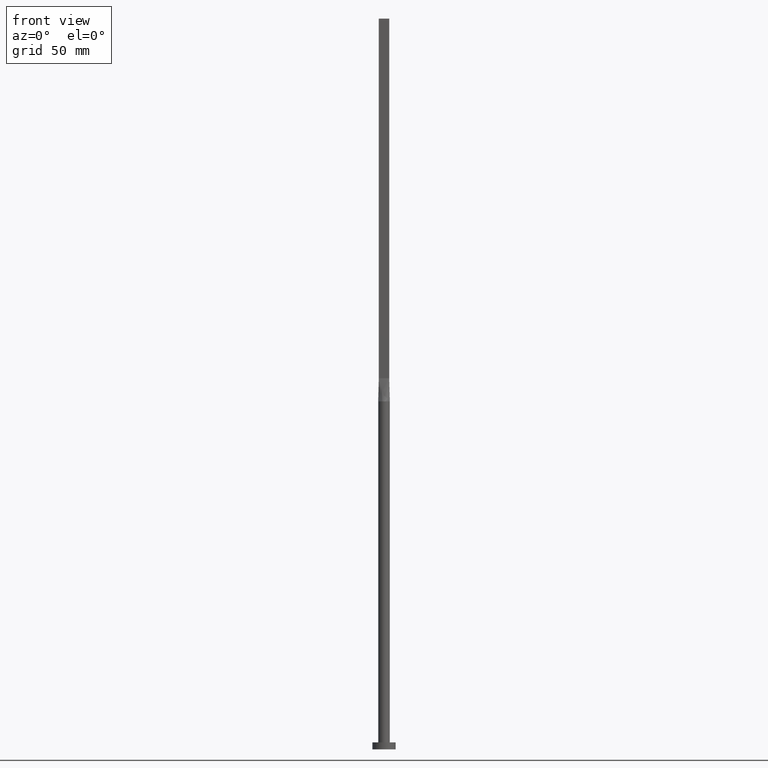
[diagram: clean part render]
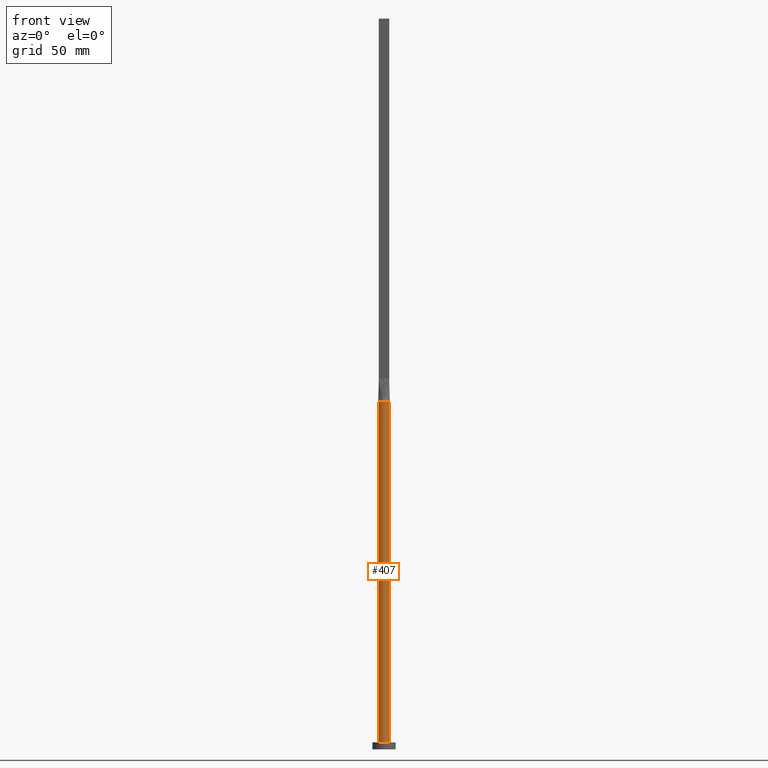
[diagram: same view with one face highlighted and labeled with its STEP entity id]
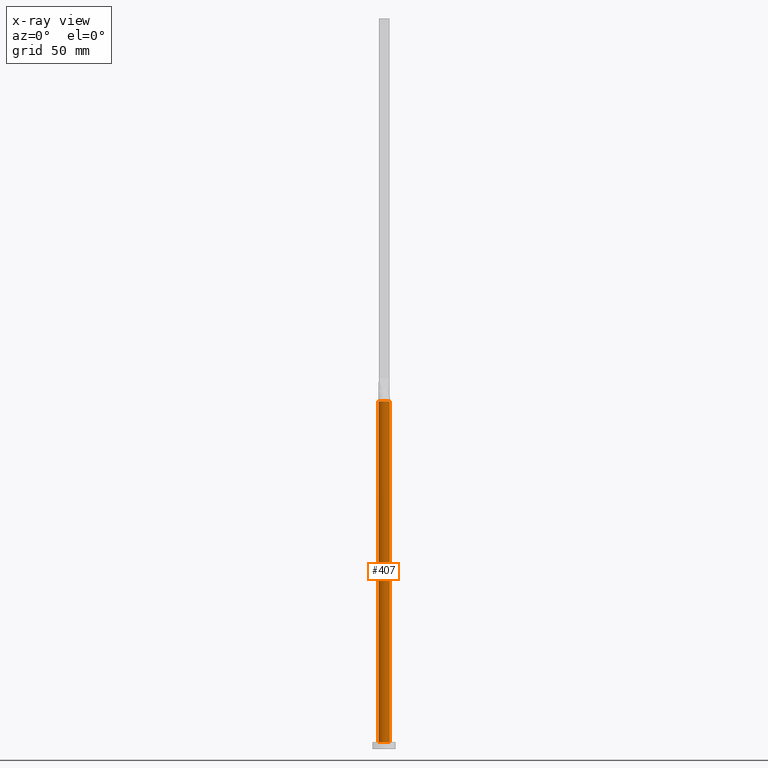
[diagram: x-ray of the same camera — body ghosted, the highlighted face saturated]
A machine part, front view. The second image highlights one B-rep face of the part: STEP entity #407.
The next image is the same camera in x-ray: the body ghosted, the highlighted face saturated — about 0% of this face is hidden behind the body in this view.
In plain terms, the highlighted cylindrical surface (edge-blend (fillet) strip) has radius 2.5 mm, axis along (-0, -0, -1).
Its self-contained STEP definition (entity closure, byte-faithful):
#11 = EDGE_CURVE ( 'NONE', #104, #449, #413, .T. ) ;
#23 = CARTESIAN_POINT ( 'NONE',  ( 0.000000000000000000, 0.000000000000000000, 150.0000000000000000 ) ) ;
#24 = CARTESIAN_POINT ( 'NONE',  ( -2.440688158044365785, -0.5423755258804862089, 150.0000000000000000 ) ) ;
#25 = CIRCLE ( 'NONE', #374, 2.500000000000000000 ) ;
#42 = AXIS2_PLACEMENT_3D ( 'NONE', #573, #391, #352 ) ;
#64 = DIRECTION ( 'NONE',  ( -0.000000000000000000, -0.000000000000000000, -1.000000000000000000 ) ) ;
#69 = CARTESIAN_POINT ( 'NONE',  ( 2.440706242928429415, -0.5423794613208688942, 150.0000000000000000 ) ) ;
#82 = VECTOR ( 'NONE', #427, 1000.000000000000000 ) ;
#87 = CIRCLE ( 'NONE', #42, 2.500000000000000000 ) ;
#96 = EDGE_CURVE ( 'NONE', #514, #244, #294, .T. ) ;
#99 = ORIENTED_EDGE ( 'NONE', *, *, #245, .F. ) ;
#104 = VERTEX_POINT ( 'NONE', #24 ) ;
#123 = DIRECTION ( 'NONE',  ( 1.000000000000000000, 0.000000000000000000, 0.000000000000000000 ) ) ;
#133 = DIRECTION ( 'NONE',  ( 0.000000000000000000, 0.000000000000000000, 1.000000000000000000 ) ) ;
#147 = EDGE_CURVE ( 'NONE', #266, #496, #217, .T. ) ;
#148 = AXIS2_PLACEMENT_3D ( 'NONE', #441, #227, #229 ) ;
#159 = AXIS2_PLACEMENT_3D ( 'NONE', #23, #291, #469 ) ;
#205 = EDGE_CURVE ( 'NONE', #266, #104, #343, .T. ) ;
#213 = CARTESIAN_POINT ( 'NONE',  ( 0.000000000000000000, 0.000000000000000000, 150.0000000000000000 ) ) ;
#217 = LINE ( 'NONE', #388, #523 ) ;
#227 = DIRECTION ( 'NONE',  ( 0.000000000000000000, 0.000000000000000000, 1.000000000000000000 ) ) ;
#229 = DIRECTION ( 'NONE',  ( 1.000000000000000000, 0.000000000000000000, 0.000000000000000000 ) ) ;
#230 = ORIENTED_EDGE ( 'NONE', *, *, #273, .T. ) ;
#244 = VERTEX_POINT ( 'NONE', #393 ) ;
#245 = EDGE_CURVE ( 'NONE', #449, #514, #87, .T. ) ;
#252 = CARTESIAN_POINT ( 'NONE',  ( 2.500000000000000000, 3.061616997868383141E-16, 150.0000000000000000 ) ) ;
#266 = VERTEX_POINT ( 'NONE', #271 ) ;
#271 = CARTESIAN_POINT ( 'NONE',  ( -2.499645589935823420, -1.700711608024726496E-15, 150.0000000000000000 ) ) ;
#273 = EDGE_CURVE ( 'NONE', #496, #244, #25, .T. ) ;
#278 = AXIS2_PLACEMENT_3D ( 'NONE', #213, #473, #123 ) ;
#291 = DIRECTION ( 'NONE',  ( -0.000000000000000000, -0.000000000000000000, -1.000000000000000000 ) ) ;
#294 = LINE ( 'NONE', #252, #82 ) ;
#296 = FACE_OUTER_BOUND ( 'NONE', #321, .T. ) ;
#321 = EDGE_LOOP ( 'NONE', ( #444, #99, #323, #399, #325, #230 ) ) ;
#323 = ORIENTED_EDGE ( 'NONE', *, *, #11, .F. ) ;
#325 = ORIENTED_EDGE ( 'NONE', *, *, #147, .T. ) ;
#343 = CIRCLE ( 'NONE', #148, 2.500000000000000000 ) ;
#352 = DIRECTION ( 'NONE',  ( 1.000000000000000000, -4.440892098500626162E-15, 0.000000000000000000 ) ) ;
#374 = AXIS2_PLACEMENT_3D ( 'NONE', #448, #133, #398 ) ;
#388 = CARTESIAN_POINT ( 'NONE',  ( -2.500000000000000000, 0.000000000000000000, 150.0000000000000000 ) ) ;
#391 = DIRECTION ( 'NONE',  ( 0.000000000000000000, 0.000000000000000000, 1.000000000000000000 ) ) ;
#392 = CARTESIAN_POINT ( 'NONE',  ( 2.499645589935823420, 5.999196936655281332E-16, 150.0000000000000000 ) ) ;
#393 = CARTESIAN_POINT ( 'NONE',  ( 2.500000000000000000, 3.061616997868383141E-16, 3.000000000000000000 ) ) ;
#398 = DIRECTION ( 'NONE',  ( 1.000000000000000000, 0.000000000000000000, 0.000000000000000000 ) ) ;
#399 = ORIENTED_EDGE ( 'NONE', *, *, #205, .F. ) ;
#407 = ADVANCED_FACE ( 'NONE', ( #296 ), #471, .T. ) ;
#413 = CIRCLE ( 'NONE', #278, 2.500000000000000000 ) ;
#427 = DIRECTION ( 'NONE',  ( -0.000000000000000000, -0.000000000000000000, -1.000000000000000000 ) ) ;
#441 = CARTESIAN_POINT ( 'NONE',  ( 0.000000000000000000, 0.000000000000000000, 150.0000000000000000 ) ) ;
#444 = ORIENTED_EDGE ( 'NONE', *, *, #96, .F. ) ;
#448 = CARTESIAN_POINT ( 'NONE',  ( 0.000000000000000000, 0.000000000000000000, 3.000000000000000000 ) ) ;
#449 = VERTEX_POINT ( 'NONE', #69 ) ;
#469 = DIRECTION ( 'NONE',  ( -1.000000000000000000, 0.000000000000000000, 0.000000000000000000 ) ) ;
#471 = CYLINDRICAL_SURFACE ( 'NONE', #159, 2.500000000000000000 ) ;
#473 = DIRECTION ( 'NONE',  ( 0.000000000000000000, 0.000000000000000000, 1.000000000000000000 ) ) ;
#496 = VERTEX_POINT ( 'NONE', #564 ) ;
#514 = VERTEX_POINT ( 'NONE', #392 ) ;
#523 = VECTOR ( 'NONE', #64, 1000.000000000000000 ) ;
#564 = CARTESIAN_POINT ( 'NONE',  ( -2.500000000000000000, 0.000000000000000000, 3.000000000000000000 ) ) ;
#573 = CARTESIAN_POINT ( 'NONE',  ( 0.000000000000000000, 0.000000000000000000, 150.0000000000000000 ) ) ;